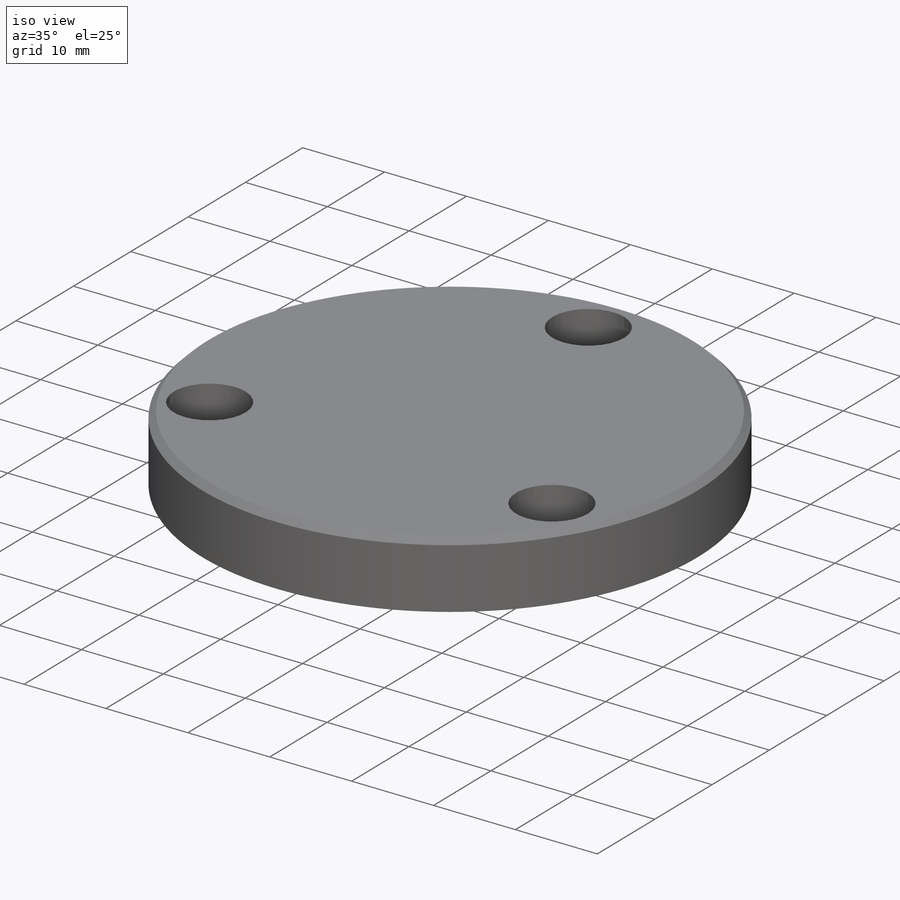
[diagram: iso view]
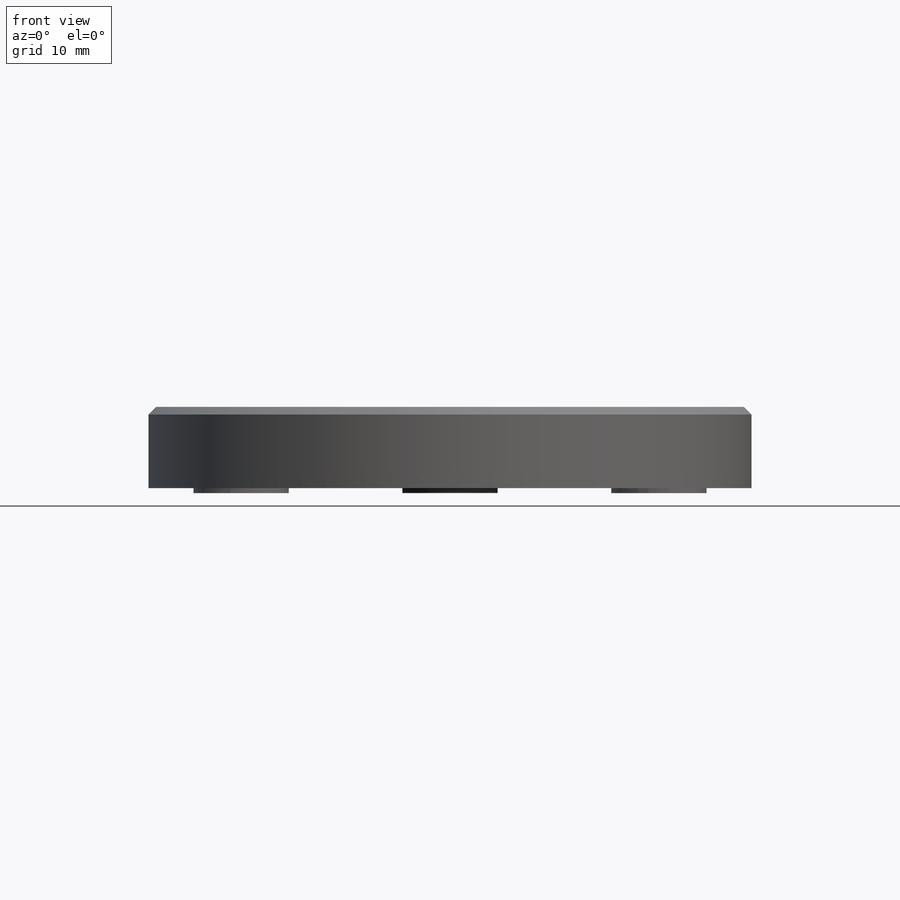
[diagram: front view]
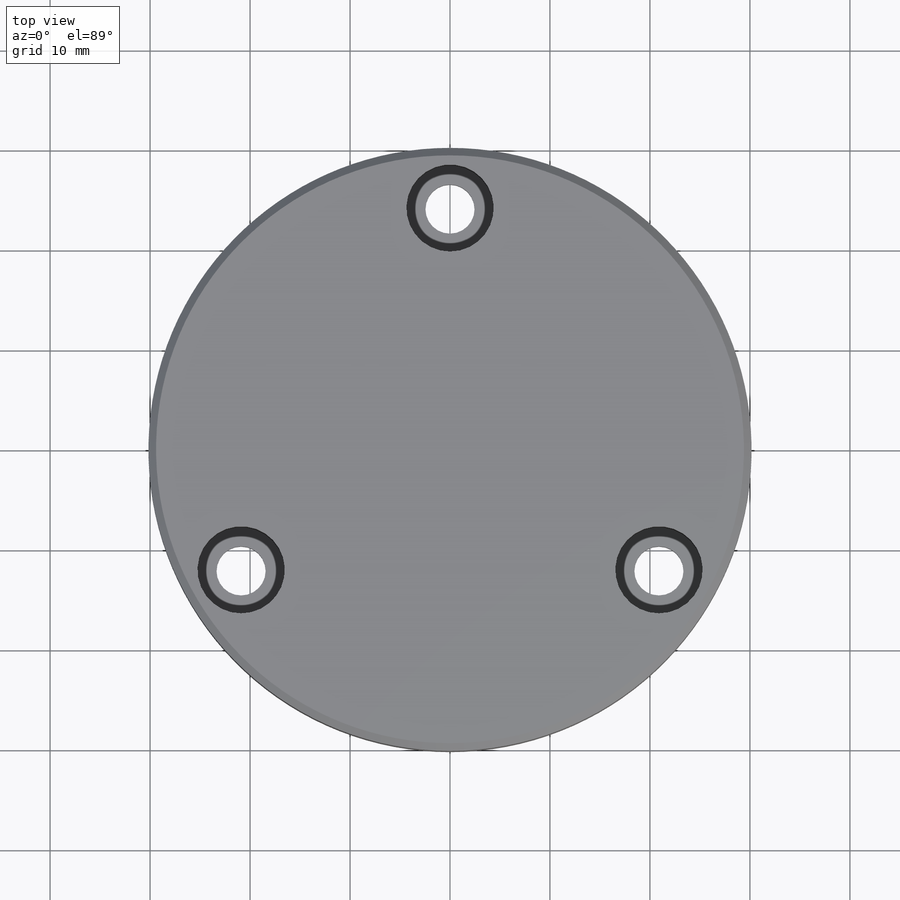
[diagram: top view]
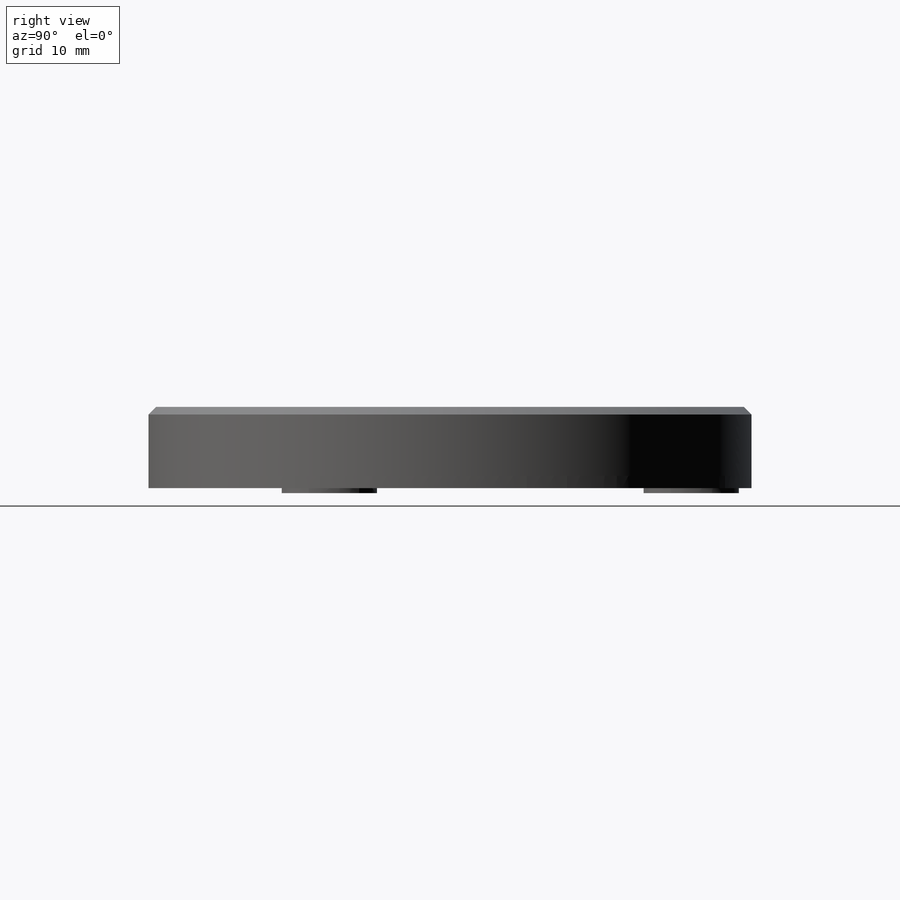
[diagram: right view]
SOLIDWORKS PART (.sldprt)
format: sldprt  version: not decoded by parser v0  size: 361,472 bytes
history: native  units: mm
features: pattern_circular x20, sketch x4, material x1, extrude x1, hole x1, cut_extrude x1, chamfer x1, plane x1 (+14 scaffold rows collapsed)
feature tree (44):
  scaffold x14  (default folders/planes/origin — collapsed)
  material  "1100-H14 "
  sketch  "Sketch1"  dims[D1=60.325mm]
  extrude  "Extrude1"  Depth=8.636mm
  hole  "CBORE for #8 Socket Head Cap Screw1"  Diameter=4.9149mm Depth=8.636mm
  sketch  "Sketch4"  dims[D1=48.26mm]
  sketch  "Sketch3"  dims[hole-wizard template sketch: 42 standard entries collapsed; hole parameters kept: c12.Thru Hole Depth=8.636mm c12.C'Bore Dia.=~8.73125mm c12.C'Bore Depth=5.8166mm]
  pattern_circular  "CirPattern1"  Count=3 Angle=360deg
  sketch  "Sketch5"  dims[D1=9.525mm]
  cut_extrude  "Cut-Extrude1"  Depth=0.508mm
  chamfer  "Chamfer1"  Distance=0.762mm Angle=45deg algFaceTag=255
  pattern_circular  "algFaceTag-1"  [2 undecoded]
  pattern_circular  "algFaceTag-2"  [2 undecoded]
  pattern_circular  "algFaceTag-3"  [2 undecoded]
  pattern_circular  "algFaceTag-4"  [2 undecoded]
  pattern_circular  "algFaceTag-5"  [2 undecoded]
  pattern_circular  "algFaceTag-6"  [2 undecoded]
  pattern_circular  "algFaceTag-7"  [2 undecoded]
  pattern_circular  "algFaceTag-8"  [2 undecoded]
  pattern_circular  "algFaceTag-9"  [2 undecoded]
  pattern_circular  "algFaceTag-10"  [2 undecoded]
  pattern_circular  "algFaceTag-11"  [2 undecoded]
  pattern_circular  "algFaceTag-12"  [2 undecoded]
  pattern_circular  "algFaceTag-13"  [2 undecoded]
  pattern_circular  "algFaceTag-14"  [2 undecoded]
  pattern_circular  "algFaceTag-15"  [2 undecoded]
  pattern_circular  "algFaceTag-16"  [2 undecoded]
  pattern_circular  "algFaceTag-17"  [2 undecoded]
  pattern_circular  "algFaceTag-18"  [2 undecoded]
  pattern_circular  "algFaceTag-19"  [2 undecoded]
  plane  "Plane1"  Offset=1.016mm
decode coverage: 9 of 28 modeling features carry decoded parameters
note: ~ marks probable driven/reference dimensions
note: 38 parameter values undecoded
note: suppression state not decoded; provenance and decode notes live in map.json
